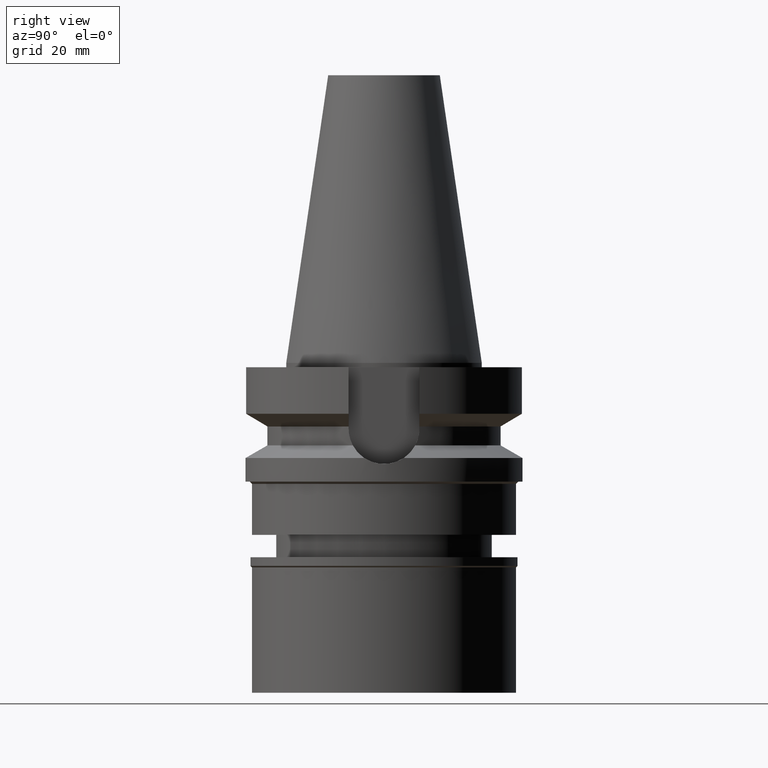
[diagram: clean part render]
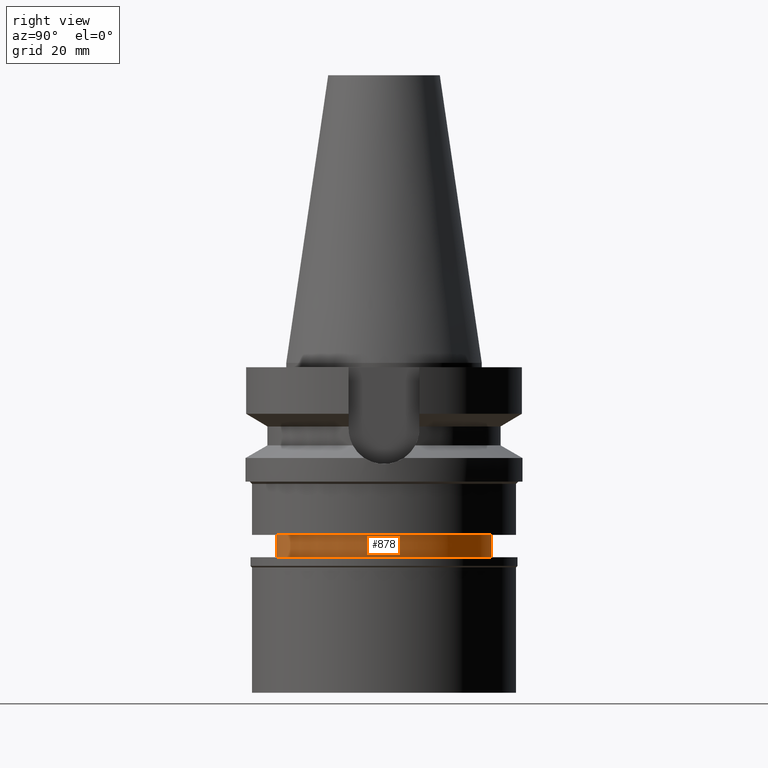
[diagram: same view with one face highlighted and labeled with its STEP entity id]
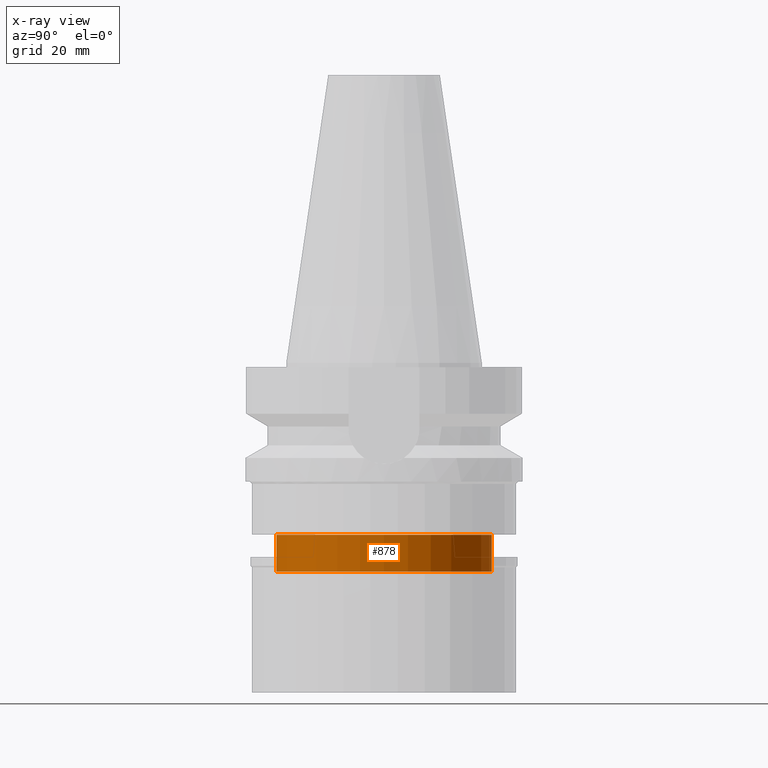
[diagram: x-ray of the same camera — body ghosted, the highlighted face saturated]
A machine part, right view. The second image highlights one B-rep face of the part: STEP entity #878.
The next image is the same camera in x-ray: the body ghosted, the highlighted face saturated — about 0% of this face is hidden behind the body in this view.
In plain terms, the highlighted cylindrical surface (partial cylindrical patch) has radius 24.5 mm, axis along (0, 0, -1).
Its self-contained STEP definition (entity closure, byte-faithful):
#104 = VECTOR ( 'NONE', #1768, 1000.000000000000000 ) ;
#185 = CARTESIAN_POINT ( 'NONE',  ( 0.0000000000000000000, 0.0000000000000000000, 0.0000000000000000000 ) ) ;
#308 = ORIENTED_EDGE ( 'NONE', *, *, #2908, .F. ) ;
#322 = ORIENTED_EDGE ( 'NONE', *, *, #355, .T. ) ;
#355 = EDGE_CURVE ( 'NONE', #1359, #2333, #608, .T. ) ;
#488 = VERTEX_POINT ( 'NONE', #1515 ) ;
#575 = ORIENTED_EDGE ( 'NONE', *, *, #2033, .T. ) ;
#589 = CARTESIAN_POINT ( 'NONE',  ( 0.0000000000000000000, -24.50000000000000000, -39.10000000000000142 ) ) ;
#608 = CIRCLE ( 'NONE', #1559, 24.50000000000000000 ) ;
#619 = LINE ( 'NONE', #2884, #897 ) ;
#666 = LINE ( 'NONE', #1085, #104 ) ;
#670 = DIRECTION ( 'NONE',  ( 0.0000000000000000000, -1.000000000000000000, 0.0000000000000000000 ) ) ;
#701 = DIRECTION ( 'NONE',  ( 0.0000000000000000000, 0.0000000000000000000, 1.000000000000000000 ) ) ;
#759 = DIRECTION ( 'NONE',  ( 0.0000000000000000000, 0.0000000000000000000, -1.000000000000000000 ) ) ;
#800 = DIRECTION ( 'NONE',  ( 0.0000000000000000000, 1.000000000000000000, 0.0000000000000000000 ) ) ;
#849 = VERTEX_POINT ( 'NONE', #1112 ) ;
#877 = CYLINDRICAL_SURFACE ( 'NONE', #2103, 24.50000000000000000 ) ;
#878 = ADVANCED_FACE ( 'NONE', ( #2722 ), #877, .T. ) ;
#897 = VECTOR ( 'NONE', #1955, 1000.000000000000000 ) ;
#1085 = CARTESIAN_POINT ( 'NONE',  ( 0.0000000000000000000, -24.50000000000000000, -39.10000000000000142 ) ) ;
#1112 = CARTESIAN_POINT ( 'NONE',  ( 0.0000000000000000000, -24.50000000000000000, -47.50000000000000000 ) ) ;
#1359 = VERTEX_POINT ( 'NONE', #1837 ) ;
#1428 = EDGE_LOOP ( 'NONE', ( #322, #1769, #575, #308 ) ) ;
#1515 = CARTESIAN_POINT ( 'NONE',  ( 0.0000000000000000000, 24.50000000000000000, -47.50000000000000000 ) ) ;
#1559 = AXIS2_PLACEMENT_3D ( 'NONE', #2867, #759, #800 ) ;
#1615 = EDGE_CURVE ( 'NONE', #2333, #849, #666, .T. ) ;
#1689 = CIRCLE ( 'NONE', #2317, 24.50000000000000000 ) ;
#1768 = DIRECTION ( 'NONE',  ( 0.0000000000000000000, 0.0000000000000000000, -1.000000000000000000 ) ) ;
#1769 = ORIENTED_EDGE ( 'NONE', *, *, #1615, .T. ) ;
#1837 = CARTESIAN_POINT ( 'NONE',  ( 0.0000000000000000000, 24.50000000000000000, -39.10000000000000142 ) ) ;
#1861 = CARTESIAN_POINT ( 'NONE',  ( 0.0000000000000000000, 0.0000000000000000000, -47.50000000000000000 ) ) ;
#1955 = DIRECTION ( 'NONE',  ( 0.0000000000000000000, 0.0000000000000000000, -1.000000000000000000 ) ) ;
#2033 = EDGE_CURVE ( 'NONE', #849, #488, #1689, .T. ) ;
#2103 = AXIS2_PLACEMENT_3D ( 'NONE', #185, #2200, #2225 ) ;
#2200 = DIRECTION ( 'NONE',  ( 0.0000000000000000000, 0.0000000000000000000, -1.000000000000000000 ) ) ;
#2225 = DIRECTION ( 'NONE',  ( 0.0000000000000000000, -1.000000000000000000, 0.0000000000000000000 ) ) ;
#2317 = AXIS2_PLACEMENT_3D ( 'NONE', #1861, #701, #670 ) ;
#2333 = VERTEX_POINT ( 'NONE', #589 ) ;
#2722 = FACE_OUTER_BOUND ( 'NONE', #1428, .T. ) ;
#2867 = CARTESIAN_POINT ( 'NONE',  ( 0.0000000000000000000, 0.0000000000000000000, -39.10000000000000142 ) ) ;
#2884 = CARTESIAN_POINT ( 'NONE',  ( 0.0000000000000000000, 24.50000000000000000, -39.10000000000000142 ) ) ;
#2908 = EDGE_CURVE ( 'NONE', #1359, #488, #619, .T. ) ;